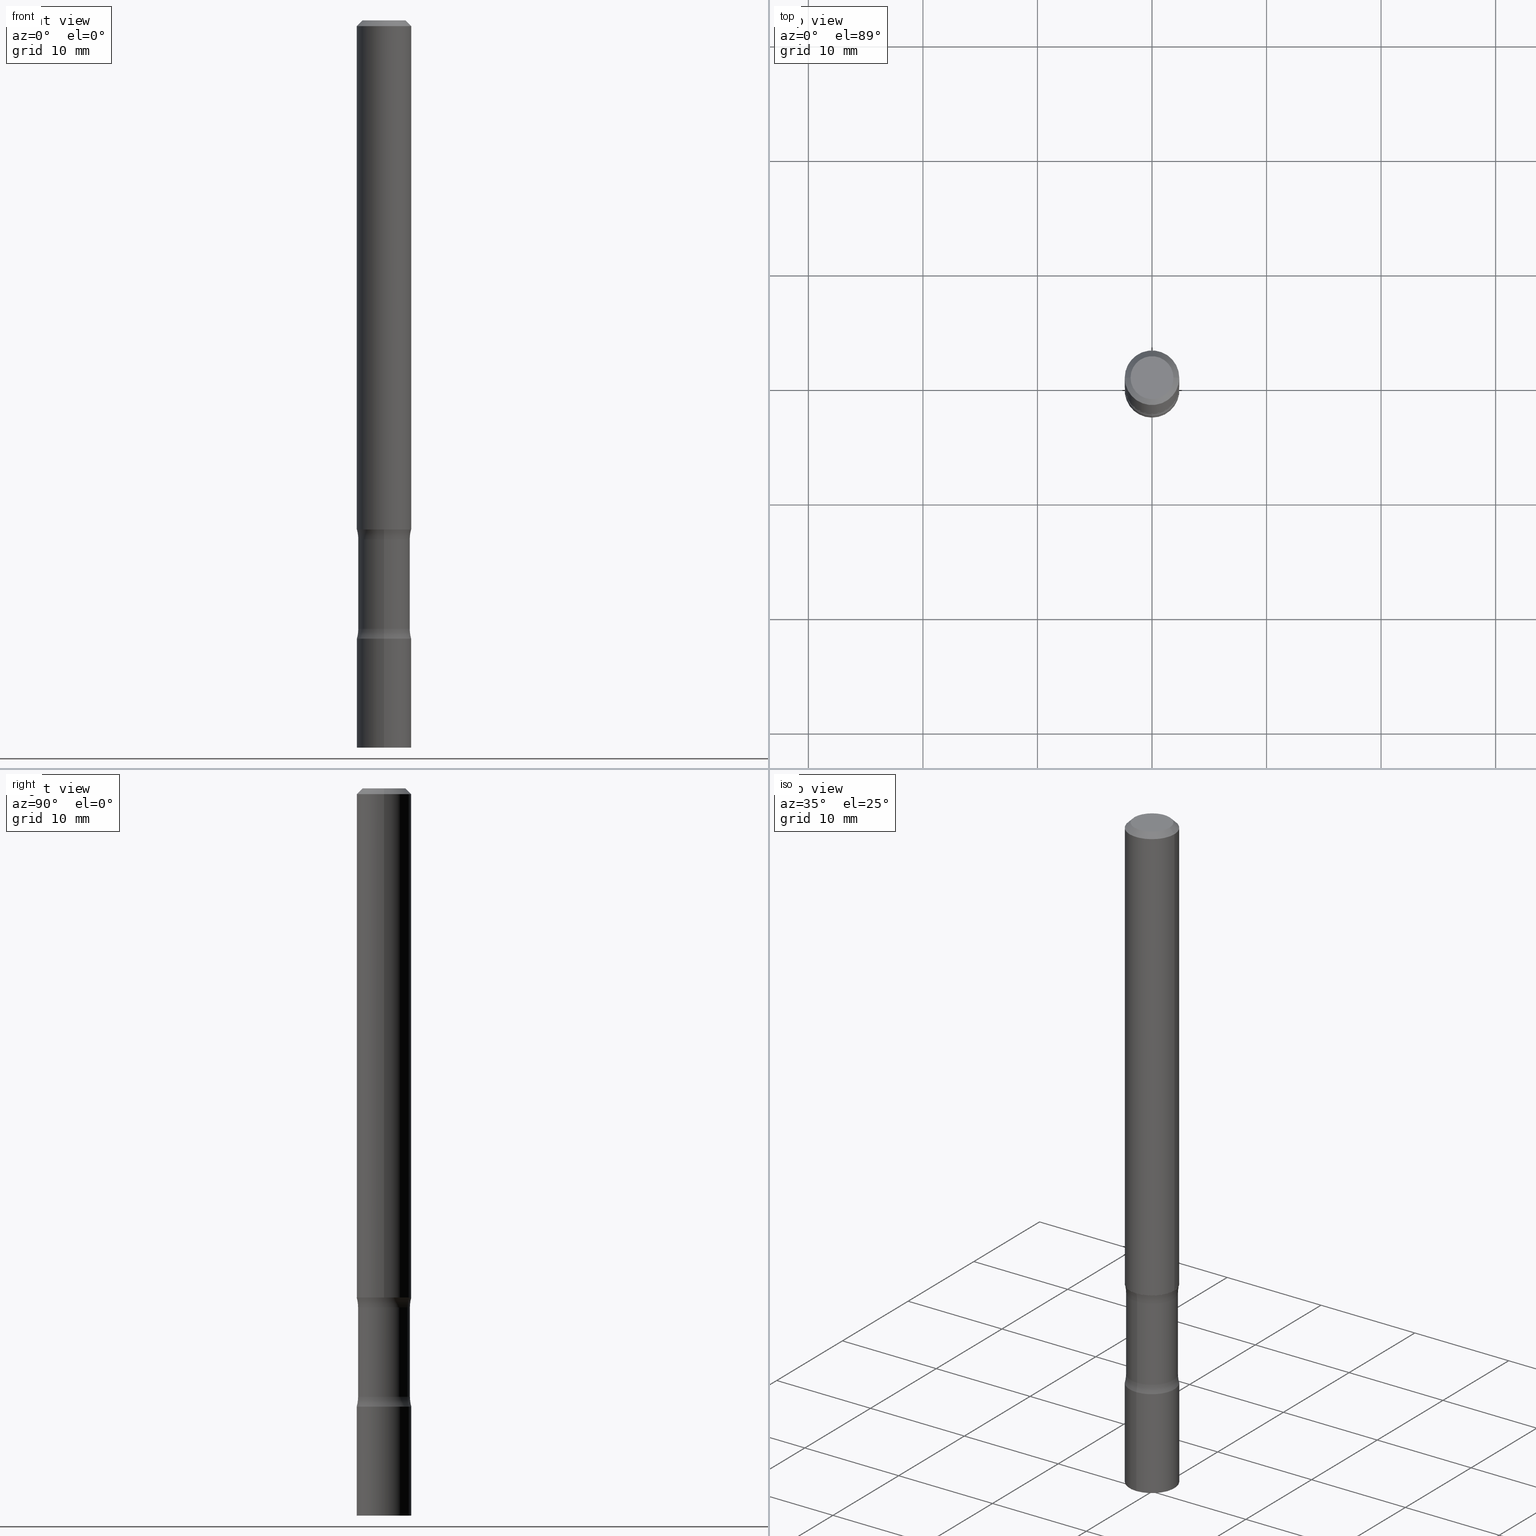
[diagram: canonical four-view strip — front | top / right | iso, engineering-drawing reading convention]
A machine part, canonical four-view strip (front | top / right | iso — engineering-drawing reading convention). The complete STEP part file that produces these views, byte-faithful:
ISO-10303-21;
HEADER;
FILE_DESCRIPTION (( 'STEP AP203' ),
    '1' );
FILE_NAME ('37767.STEP',
    '2024-03-11T13:24:12',
    ( '' ),
    ( '' ),
    'SwSTEP 2.0',
    'SolidWorks 2023',
    '' );
FILE_SCHEMA (( 'CONFIG_CONTROL_DESIGN' ));
ENDSEC;

DATA;
#1 = DATE_TIME_ROLE ( 'creation_date' ) ;
#2 = MANIFOLD_SOLID_BREP ( 'Body-Move/Copy2[2]', #119 ) ;
#3 = APPROVAL_ROLE ( '' ) ;
#4 = CIRCLE ( 'NONE', #356, 0.09375000000000001388 ) ;
#5 = AXIS2_PLACEMENT_3D ( 'NONE', #372, #20, #189 ) ;
#6 = FACE_OUTER_BOUND ( 'NONE', #46, .T. ) ;
#7 = MANIFOLD_SOLID_BREP ( 'Body-Move/Copy2[1]', #424 ) ;
#8 = VERTEX_POINT ( 'NONE', #139 ) ;
#9 = CALENDAR_DATE ( 2024, 11, 3 ) ;
#10 = EDGE_LOOP ( 'NONE', ( #250, #318 ) ) ;
#11 = VERTEX_POINT ( 'NONE', #443 ) ;
#12 = DIRECTION ( 'NONE',  ( -1.000000000000000000, 6.982962677686265922E-15, -4.876176775795935793E-29 ) ) ;
#13 = ADVANCED_FACE ( 'NONE', ( #403 ), #407, .T. ) ;
#14 = DIRECTION ( 'NONE',  ( 1.000000000000000000, -6.982962677686261189E-15, 0.000000000000000000 ) ) ;
#15 = ORIENTED_EDGE ( 'NONE', *, *, #326, .T. ) ;
#16 = CARTESIAN_POINT ( 'NONE',  ( 4.279570410823988484E-29, -6.110092342975504671E-15, -1.750000000000000000 ) ) ;
#17 = ORIENTED_EDGE ( 'NONE', *, *, #332, .F. ) ;
#18 = DIRECTION ( 'NONE',  ( 1.000000000000000000, -6.982962677686266711E-15, 4.876176775795935793E-29 ) ) ;
#19 = ADVANCED_FACE ( 'NONE', ( #50 ), #215, .T. ) ;
#20 = DIRECTION ( 'NONE',  ( -2.445335353247201709E-29, 3.491672451045937805E-15, 1.000000000000000000 ) ) ;
#21 = AXIS2_PLACEMENT_3D ( 'NONE', #260, #97, #251 ) ;
#22 = AXIS2_PLACEMENT_3D ( 'NONE', #455, #104, #263 ) ;
#23 = ORIENTED_EDGE ( 'NONE', *, *, #227, .T. ) ;
#24 = CARTESIAN_POINT ( 'NONE',  ( 6.546527510331397661E-16, 0.09374999999999261702, -2.125000000000000444 ) ) ;
#25 = CARTESIAN_POINT ( 'NONE',  ( 5.196337625650303527E-29, -7.419803958472619019E-15, -2.125000000000000000 ) ) ;
#26 = ORIENTED_EDGE ( 'NONE', *, *, #439, .F. ) ;
#27 = DIRECTION ( 'NONE',  ( -6.982962677686265922E-15, -1.000000000000000000, 2.913971193241880372E-15 ) ) ;
#28 = CARTESIAN_POINT ( 'NONE',  ( 4.314805790192302667E-29, -6.296785408305889994E-15, -1.783910210022204401 ) ) ;
#29 = CC_DESIGN_DATE_AND_TIME_ASSIGNMENT ( #353, #1, ( #488 ) ) ;
#30 = CARTESIAN_POINT ( 'NONE',  ( 6.661338147750938256E-16, 0.09375000000000001388, -3.273442922855567185E-16 ) ) ;
#31 = CIRCLE ( 'NONE', #289, 0.09375000000000001388 ) ;
#32 = AXIS2_PLACEMENT_3D ( 'NONE', #391, #200, #508 ) ;
#33 = LINE ( 'NONE', #348, #153 ) ;
#34 = DIRECTION ( 'NONE',  ( 2.577039791092079409E-29, -3.303064199901000429E-15, -1.000000000000000000 ) ) ;
#35 = CC_DESIGN_PERSON_AND_ORGANIZATION_ASSIGNMENT ( #475, #436, ( #486 ) ) ;
#36 = FACE_OUTER_BOUND ( 'NONE', #10, .T. ) ;
#37 = AXIS2_PLACEMENT_3D ( 'NONE', #257, #57, #395 ) ;
#38 = PERSON_AND_ORGANIZATION ( #60, #254 ) ;
#39 = SECURITY_CLASSIFICATION ( '', '', #207 ) ;
#40 = DIRECTION ( 'NONE',  ( 1.000000000000000000, -6.982962677686266711E-15, 0.000000000000000000 ) ) ;
#41 = CALENDAR_DATE ( 2024, 11, 3 ) ;
#42 = ORIENTED_EDGE ( 'NONE', *, *, #340, .T. ) ;
#43 = PERSON_AND_ORGANIZATION ( #60, #254 ) ;
#44 = EDGE_CURVE ( 'NONE', #61, #264, #489, .T. ) ;
#45 = DIRECTION ( 'NONE',  ( -6.982962677686265922E-15, -1.000000000000000000, 3.303064199901000035E-15 ) ) ;
#46 = EDGE_LOOP ( 'NONE', ( #131, #96 ) ) ;
#47 = APPROVAL_DATE_TIME ( #319, #431 ) ;
#48 = CIRCLE ( 'NONE', #425, 0.09375000000000001388 ) ;
#49 = AXIS2_PLACEMENT_3D ( 'NONE', #156, #423, #385 ) ;
#50 = FACE_OUTER_BOUND ( 'NONE', #216, .T. ) ;
#51 = ORIENTED_EDGE ( 'NONE', *, *, #332, .T. ) ;
#52 = ORIENTED_EDGE ( 'NONE', *, *, #133, .F. ) ;
#53 = DIRECTION ( 'NONE',  ( -2.445468806185136597E-29, 3.491481338843145583E-15, 1.000000000000000000 ) ) ;
#54 = ORIENTED_EDGE ( 'NONE', *, *, #208, .T. ) ;
#55 = CIRCLE ( 'NONE', #381, 0.07374999999999982958 ) ;
#56 = VECTOR ( 'NONE', #427, 39.37007874015748143 ) ;
#57 = DIRECTION ( 'NONE',  ( 2.577039791092079409E-29, -3.303064199901000429E-15, -1.000000000000000000 ) ) ;
#58 = VERTEX_POINT ( 'NONE', #329 ) ;
#59 = DIRECTION ( 'NONE',  ( 2.577039791092079409E-29, -3.303064199901000429E-15, -1.000000000000000000 ) ) ;
#60 = PERSON ( 'UNSPECIFIED', 'UNSPECIFIED', 'UNSPECIFIED', ('UNSPECIFIED'), ('UNSPECIFIED'), ('UNSPECIFIED') ) ;
#61 = VERTEX_POINT ( 'NONE', #405 ) ;
#62 = CARTESIAN_POINT ( 'NONE',  ( 5.196337625650303527E-29, -7.419803958472619019E-15, -2.125000000000000000 ) ) ;
#63 = VERTEX_POINT ( 'NONE', #481 ) ;
#64 = DIRECTION ( 'NONE',  ( -2.438088387897960049E-29, 3.491481338843145188E-15, 1.000000000000000000 ) ) ;
#65 = AXIS2_PLACEMENT_3D ( 'NONE', #115, #64, #305 ) ;
#66 = AXIS2_PLACEMENT_3D ( 'NONE', #28, #194, #109 ) ;
#67 = EDGE_LOOP ( 'NONE', ( #333, #51 ) ) ;
#68 = CC_DESIGN_APPROVAL ( #198, ( #39 ) ) ;
#69 = CARTESIAN_POINT ( 'NONE',  ( 5.196337625650303527E-29, -7.419803958472619019E-15, -2.125000000000000000 ) ) ;
#70 = DIRECTION ( 'NONE',  ( -2.445335353247201709E-29, 3.491672451045937805E-15, 1.000000000000000000 ) ) ;
#71 = EDGE_CURVE ( 'NONE', #11, #362, #159, .T. ) ;
#72 = DIRECTION ( 'NONE',  ( -2.445468806185136597E-29, 3.491481338843145583E-15, 1.000000000000000000 ) ) ;
#73 = CARTESIAN_POINT ( 'NONE',  ( 4.317335664542283686E-29, -6.293162484245211017E-15, -1.783910210022204401 ) ) ;
#74 = DIRECTION ( 'NONE',  ( 2.577039791092079409E-29, -3.303064199901000429E-15, -1.000000000000000000 ) ) ;
#75 = AXIS2_PLACEMENT_3D ( 'NONE', #192, #336, #334 ) ;
#76 = AXIS2_PLACEMENT_3D ( 'NONE', #502, #242, #40 ) ;
#77 = FACE_OUTER_BOUND ( 'NONE', #366, .T. ) ;
#78 = EDGE_CURVE ( 'NONE', #63, #437, #31, .T. ) ;
#79 = DIRECTION ( 'NONE',  ( -2.445335353247201709E-29, 3.491672451045937805E-15, 1.000000000000000000 ) ) ;
#80 = DESIGN_CONTEXT ( 'detailed design', #141, 'design' ) ;
#81 = PERSON_AND_ORGANIZATION_ROLE ( 'creator' ) ;
#82 = AXIS2_PLACEMENT_3D ( 'NONE', #62, #110, #27 ) ;
#83 = CARTESIAN_POINT ( 'NONE',  ( -6.546527510330875041E-16, -0.09375000000000001388, 3.273442922855567185E-16 ) ) ;
#84 = ADVANCED_FACE ( 'NONE', ( #6 ), #185, .F. ) ;
#85 = ORIENTED_EDGE ( 'NONE', *, *, #308, .F. ) ;
#86 = COORDINATED_UNIVERSAL_TIME_OFFSET ( 5, 0, .BEHIND. ) ;
#87 = DIRECTION ( 'NONE',  ( 6.860497997771531562E-15, 1.000000000000000000, 0.000000000000000000 ) ) ;
#88 = PERSON_AND_ORGANIZATION ( #60, #254 ) ;
#89 = ORIENTED_EDGE ( 'NONE', *, *, #44, .T. ) ;
#90 = ORIENTED_EDGE ( 'NONE', *, *, #190, .F. ) ;
#91 = APPROVAL_STATUS ( 'not_yet_approved' ) ;
#92 = VECTOR ( 'NONE', #483, 39.37007874015748143 ) ;
#93 = AXIS2_PLACEMENT_3D ( 'NONE', #107, #248, #236 ) ;
#94 = EDGE_CURVE ( 'NONE', #183, #256, #223, .T. ) ;
#95 = EDGE_LOOP ( 'NONE', ( #17, #293, #15, #301 ) ) ;
#96 = ORIENTED_EDGE ( 'NONE', *, *, #217, .T. ) ;
#97 = DIRECTION ( 'NONE',  ( -2.445335353247201709E-29, 3.491672451045937805E-15, 1.000000000000000000 ) ) ;
#98 = ORIENTED_EDGE ( 'NONE', *, *, #117, .F. ) ;
#99 = DIRECTION ( 'NONE',  ( 1.000000000000000000, -6.860497997771530774E-15, 4.843106324085242827E-29 ) ) ;
#100 = ORIENTED_EDGE ( 'NONE', *, *, #308, .T. ) ;
#101 = CC_DESIGN_APPROVAL ( #220, ( #488 ) ) ;
#102 = CARTESIAN_POINT ( 'NONE',  ( 0.000000000000000000, 0.000000000000000000, 0.000000000000000000 ) ) ;
#103 = ADVANCED_FACE ( 'NONE', ( #213 ), #134, .F. ) ;
#104 = DIRECTION ( 'NONE',  ( 2.445335353247201149E-29, -3.491672451045938200E-15, -1.000000000000000000 ) ) ;
#105 = ORIENTED_EDGE ( 'NONE', *, *, #44, .F. ) ;
#106 = CARTESIAN_POINT ( 'NONE',  ( 5.108949665098794430E-29, -7.307796357737152502E-15, -2.091089789977795821 ) ) ;
#107 = CARTESIAN_POINT ( 'NONE',  ( 1.494790448192267744E-15, 0.2140624999999927169, -2.091089789977796709 ) ) ;
#108 = VERTEX_POINT ( 'NONE', #249 ) ;
#109 = DIRECTION ( 'NONE',  ( 6.982962677686265922E-15, 1.000000000000000000, -3.303064199901000429E-15 ) ) ;
#110 = DIRECTION ( 'NONE',  ( -2.445335353247201709E-29, 3.491672451045937805E-15, 1.000000000000000000 ) ) ;
#111 = ADVANCED_FACE ( 'NONE', ( #295 ), #179, .T. ) ;
#112 = AXIS2_PLACEMENT_3D ( 'NONE', #478, #283, #12 ) ;
#113 = VECTOR ( 'NONE', #398, 39.37007874015748143 ) ;
#114 = CARTESIAN_POINT ( 'NONE',  ( 0.000000000000000000, 0.000000000000000000, 0.000000000000000000 ) ) ;
#115 = CARTESIAN_POINT ( 'NONE',  ( 4.279570410823988484E-29, -6.110092342975504671E-15, -1.750000000000000000 ) ) ;
#116 =( NAMED_UNIT ( * ) SI_UNIT ( $, .STERADIAN. ) SOLID_ANGLE_UNIT ( ) );
#117 = EDGE_CURVE ( 'NONE', #8, #108, #390, .T. ) ;
#118 = DIRECTION ( 'NONE',  ( 2.577039791092079409E-29, -3.303064199901000035E-15, -1.000000000000000000 ) ) ;
#119 = CLOSED_SHELL ( 'NONE', ( #174, #317, #184, #84, #258, #505 ) ) ;
#120 = TOROIDAL_SURFACE ( 'NONE', #383, 0.2140625000000000167, 0.1249999999999999584 ) ;
#121 = CARTESIAN_POINT ( 'NONE',  ( 4.229947703990773468E-29, -6.181154883509742133E-15, -1.750000000000000000 ) ) ;
#122 = DIRECTION ( 'NONE',  ( 1.000000000000000000, 0.000000000000000000, 0.000000000000000000 ) ) ;
#123 = DIRECTION ( 'NONE',  ( 6.982962677686265922E-15, 1.000000000000000000, -3.491672451045938200E-15 ) ) ;
#124 = EDGE_CURVE ( 'NONE', #437, #256, #400, .T. ) ;
#125 = COORDINATED_UNIVERSAL_TIME_OFFSET ( 5, 0, .BEHIND. ) ;
#126 = CC_DESIGN_PERSON_AND_ORGANIZATION_ASSIGNMENT ( #38, #81, ( #488 ) ) ;
#127 = VERTEX_POINT ( 'NONE', #341 ) ;
#128 = AXIS2_PLACEMENT_3D ( 'NONE', #245, #468, #123 ) ;
#129 = DIRECTION ( 'NONE',  ( -2.445468806185136597E-29, 3.491481338843145583E-15, 1.000000000000000000 ) ) ;
#130 = VERTEX_POINT ( 'NONE', #498 ) ;
#131 = ORIENTED_EDGE ( 'NONE', *, *, #421, .T. ) ;
#132 = ORIENTED_EDGE ( 'NONE', *, *, #421, .F. ) ;
#133 = EDGE_CURVE ( 'NONE', #325, #130, #458, .T. ) ;
#134 = PLANE ( 'NONE',  #374 ) ;
#135 = ORIENTED_EDGE ( 'NONE', *, *, #361, .T. ) ;
#136 = AXIS2_PLACEMENT_3D ( 'NONE', #449, #99, #209 ) ;
#137 = LOCAL_TIME ( 9, 24, 12.00000000000000000, #355 ) ;
#138 = APPROVAL_PERSON_ORGANIZATION ( #43, #198, #3 ) ;
#139 = CARTESIAN_POINT ( 'NONE',  ( -6.270923951087616950E-16, -0.08906250000000633105, -1.783910210022204179 ) ) ;
#140 = VERTEX_POINT ( 'NONE', #415 ) ;
#141 = APPLICATION_CONTEXT ( 'configuration controlled 3d designs of mechanical parts and assemblies' ) ;
#142 = DIRECTION ( 'NONE',  ( -0.7071067811865467956, 2.468850131082249172E-15, -0.7071067811865482389 ) ) ;
#143 = ORIENTED_EDGE ( 'NONE', *, *, #493, .T. ) ;
#144 = DIRECTION ( 'NONE',  ( -2.445335353247201709E-29, 3.491672451045938200E-15, 1.000000000000000000 ) ) ;
#145 = ORIENTED_EDGE ( 'NONE', *, *, #124, .T. ) ;
#146 = CIRCLE ( 'NONE', #93, 0.1249999999999999584 ) ;
#147 = DIRECTION ( 'NONE',  ( -2.445335353247201709E-29, 3.491672451045937805E-15, 1.000000000000000000 ) ) ;
#148 = DIRECTION ( 'NONE',  ( -6.982962677686265922E-15, -1.000000000000000000, 2.913971193241880372E-15 ) ) ;
#149 = CC_DESIGN_PERSON_AND_ORGANIZATION_ASSIGNMENT ( #432, #244, ( #39 ) ) ;
#150 = CARTESIAN_POINT ( 'NONE',  ( -0.09374999999999979183, 5.848231242562231212E-16, -0.02000000000000000042 ) ) ;
#151 = AXIS2_PLACEMENT_3D ( 'NONE', #420, #452, #230 ) ;
#152 = DIRECTION ( 'NONE',  ( 2.577039791092079409E-29, -3.303064199901000429E-15, -1.000000000000000000 ) ) ;
#153 = VECTOR ( 'NONE', #118, 39.37007874015748143 ) ;
#154 = LENGTH_MEASURE_WITH_UNIT ( LENGTH_MEASURE( 0.02539999999999999897 ), #158 );
#155 = DIRECTION ( 'NONE',  ( 2.577039791092079409E-29, -3.303064199901000429E-15, -1.000000000000000000 ) ) ;
#156 = CARTESIAN_POINT ( 'NONE',  ( 4.279570410823988484E-29, -6.110092342975504671E-15, -1.750000000000000000 ) ) ;
#157 = DATE_AND_TIME ( #480, #384 ) ;
#158 =( LENGTH_UNIT ( ) NAMED_UNIT ( * ) SI_UNIT ( $, .METRE. ) );
#159 = CIRCLE ( 'NONE', #408, 0.1249999999999999584 ) ;
#160 = TOROIDAL_SURFACE ( 'NONE', #188, 0.2140625000000000167, 0.1249999999999999584 ) ;
#161 = MECHANICAL_CONTEXT ( 'NONE', #373, 'mechanical' ) ;
#162 = FACE_OUTER_BOUND ( 'NONE', #451, .T. ) ;
#163 = PRODUCT ( '37767', '37767', '', ( #161 ) ) ;
#164 = APPROVAL_ROLE ( '' ) ;
#165 = CC_DESIGN_PERSON_AND_ORGANIZATION_ASSIGNMENT ( #388, #313, ( #163 ) ) ;
#166 = FACE_OUTER_BOUND ( 'NONE', #167, .T. ) ;
#167 = EDGE_LOOP ( 'NONE', ( #173, #89, #143, #445 ) ) ;
#168 = PERSON_AND_ORGANIZATION ( #60, #254 ) ;
#169 = CIRCLE ( 'NONE', #453, 0.08906250000000003053 ) ;
#170 = CC_DESIGN_APPROVAL ( #431, ( #486 ) ) ;
#171 = COORDINATED_UNIVERSAL_TIME_OFFSET ( 5, 0, .BEHIND. ) ;
#172 = DIRECTION ( 'NONE',  ( 1.000000000000000000, -6.982962677686261189E-15, 0.000000000000000000 ) ) ;
#173 = ORIENTED_EDGE ( 'NONE', *, *, #217, .F. ) ;
#174 = ADVANCED_FACE ( 'NONE', ( #297 ), #371, .T. ) ;
#175 = ORIENTED_EDGE ( 'NONE', *, *, #262, .F. ) ;
#176 = APPROVAL_STATUS ( 'not_yet_approved' ) ;
#177 = DIRECTION ( 'NONE',  ( 2.577039791092079409E-29, -3.303064199901000429E-15, -1.000000000000000000 ) ) ;
#178 = EDGE_LOOP ( 'NONE', ( #266, #438, #404, #364 ) ) ;
#179 = CYLINDRICAL_SURFACE ( 'NONE', #320, 0.08906250000000004441 ) ;
#180 = VECTOR ( 'NONE', #144, 39.37007874015748143 ) ;
#181 = CIRCLE ( 'NONE', #344, 0.08906250000000008604 ) ;
#182 = CARTESIAN_POINT ( 'NONE',  ( -1.468575352647917278E-15, -0.2140625000000073164, -2.091089789977794933 ) ) ;
#183 = VERTEX_POINT ( 'NONE', #269 ) ;
#184 = ADVANCED_FACE ( 'NONE', ( #496 ), #275, .T. ) ;
#185 = PLANE ( 'NONE',  #112 ) ;
#186 = ORIENTED_EDGE ( 'NONE', *, *, #416, .F. ) ;
#187 = CARTESIAN_POINT ( 'NONE',  ( 6.546527510331302998E-16, 0.09374999999999390765, -1.750000000000000222 ) ) ;
#188 = AXIS2_PLACEMENT_3D ( 'NONE', #191, #504, #503 ) ;
#189 = DIRECTION ( 'NONE',  ( -6.982962677686265922E-15, -1.000000000000000000, 3.491672451045937805E-15 ) ) ;
#190 = EDGE_CURVE ( 'NONE', #140, #8, #499, .T. ) ;
#191 = CARTESIAN_POINT ( 'NONE',  ( 5.113694852322929096E-29, -7.301000979552907494E-15, -2.091089789977795821 ) ) ;
#192 = CARTESIAN_POINT ( 'NONE',  ( 1.494790448192259855E-15, 0.2140624999999937716, -1.783910210022205289 ) ) ;
#193 = ORIENTED_EDGE ( 'NONE', *, *, #439, .T. ) ;
#194 = DIRECTION ( 'NONE',  ( 2.577039791092079409E-29, -3.303064199901000429E-15, -1.000000000000000000 ) ) ;
#195 = DIRECTION ( 'NONE',  ( -2.445468806185136877E-29, 3.491481338843145188E-15, 1.000000000000000000 ) ) ;
#196 = CARTESIAN_POINT ( 'NONE',  ( 5.108949665098794430E-29, -7.307796357737152502E-15, -2.091089789977795821 ) ) ;
#197 = AXIS2_PLACEMENT_3D ( 'NONE', #387, #79, #240 ) ;
#198 = APPROVAL ( #176, 'UNSPECIFIED' ) ;
#199 = CARTESIAN_POINT ( 'NONE',  ( 5.113694852322929096E-29, -7.301000979552907494E-15, -2.091089789977795821 ) ) ;
#200 = DIRECTION ( 'NONE',  ( 2.445468806185136597E-29, -3.491481338843145583E-15, -1.000000000000000000 ) ) ;
#201 = VECTOR ( 'NONE', #142, 39.37007874015748143 ) ;
#202 = APPROVAL_PERSON_ORGANIZATION ( #88, #431, #164 ) ;
#203 = EDGE_CURVE ( 'NONE', #140, #285, #261, .T. ) ;
#204 = DIRECTION ( 'NONE',  ( 6.982962677686265133E-15, 1.000000000000000000, -3.067338098149345144E-15 ) ) ;
#205 = CARTESIAN_POINT ( 'NONE',  ( 4.279570410823988484E-29, -6.110092342975504671E-15, -1.750000000000000000 ) ) ;
#206 = ORIENTED_EDGE ( 'NONE', *, *, #447, .T. ) ;
#207 = SECURITY_CLASSIFICATION_LEVEL ( 'unclassified' ) ;
#208 = EDGE_CURVE ( 'NONE', #285, #362, #342, .T. ) ;
#209 = DIRECTION ( 'NONE',  ( 6.860497997771531562E-15, 1.000000000000000000, 0.000000000000000000 ) ) ;
#210 = ORIENTED_EDGE ( 'NONE', *, *, #350, .F. ) ;
#211 = AXIS2_PLACEMENT_3D ( 'NONE', #419, #339, #347 ) ;
#212 = PERSON_AND_ORGANIZATION_ROLE ( 'design_supplier' ) ;
#213 = FACE_OUTER_BOUND ( 'NONE', #67, .T. ) ;
#214 = EDGE_LOOP ( 'NONE', ( #231, #186 ) ) ;
#215 = CYLINDRICAL_SURFACE ( 'NONE', #37, 0.08906250000000004441 ) ;
#216 = EDGE_LOOP ( 'NONE', ( #210, #23, #225, #298 ) ) ;
#217 = EDGE_CURVE ( 'NONE', #61, #183, #55, .T. ) ;
#218 = CARTESIAN_POINT ( 'NONE',  ( -0.09374999999999979183, 5.848231242562231212E-16, -0.02000000000000000042 ) ) ;
#219 = ORIENTED_EDGE ( 'NONE', *, *, #274, .F. ) ;
#220 = APPROVAL ( #91, 'UNSPECIFIED' ) ;
#221 = AXIS2_PLACEMENT_3D ( 'NONE', #121, #34, #343 ) ;
#222 = CIRCLE ( 'NONE', #401, 0.09375000000000001388 ) ;
#223 = LINE ( 'NONE', #218, #201 ) ;
#224 = PLANE ( 'NONE',  #65 ) ;
#225 = ORIENTED_EDGE ( 'NONE', *, *, #203, .T. ) ;
#226 = FACE_OUTER_BOUND ( 'NONE', #290, .T. ) ;
#227 = EDGE_CURVE ( 'NONE', #8, #140, #169, .T. ) ;
#228 = AXIS2_PLACEMENT_3D ( 'NONE', #73, #152, #331 ) ;
#229 = CIRCLE ( 'NONE', #82, 0.09375000000000001388 ) ;
#230 = DIRECTION ( 'NONE',  ( -1.000000000000000000, 6.982962677686266711E-15, 0.000000000000000000 ) ) ;
#231 = ORIENTED_EDGE ( 'NONE', *, *, #276, .F. ) ;
#232 = DIRECTION ( 'NONE',  ( 6.982962677686265922E-15, 1.000000000000000000, -2.913971193241880372E-15 ) ) ;
#233 = CARTESIAN_POINT ( 'NONE',  ( 6.219201134814949559E-16, 0.08906249999999139855, -2.500000000000000444 ) ) ;
#234 = DIRECTION ( 'NONE',  ( 6.982962677686266711E-15, 1.000000000000000000, -2.913971193241878794E-15 ) ) ;
#235 = DIRECTION ( 'NONE',  ( -2.445468806185136597E-29, 3.491481338843145583E-15, 1.000000000000000000 ) ) ;
#236 = DIRECTION ( 'NONE',  ( -6.982962677686265922E-15, -1.000000000000000000, 0.000000000000000000 ) ) ;
#237 = CIRCLE ( 'NONE', #75, 0.1250000000000000278 ) ;
#238 = DIRECTION ( 'NONE',  ( 6.982962677686265922E-15, 1.000000000000000000, -3.303064199901000429E-15 ) ) ;
#239 = AXIS2_PLACEMENT_3D ( 'NONE', #303, #460, #382 ) ;
#240 = DIRECTION ( 'NONE',  ( -6.982962677686265922E-15, -1.000000000000000000, 5.827942386483760744E-15 ) ) ;
#241 = CARTESIAN_POINT ( 'NONE',  ( 0.000000000000000000, 0.000000000000000000, 0.000000000000000000 ) ) ;
#242 = DIRECTION ( 'NONE',  ( -2.445468806185136597E-29, 3.491481338843145583E-15, 1.000000000000000000 ) ) ;
#243 = AXIS2_PLACEMENT_3D ( 'NONE', #337, #270, #267 ) ;
#244 = PERSON_AND_ORGANIZATION_ROLE ( 'classification_officer' ) ;
#245 = CARTESIAN_POINT ( 'NONE',  ( 5.196621213143415268E-29, -7.419397845041685201E-15, -2.125000000000000000 ) ) ;
#246 = EDGE_LOOP ( 'NONE', ( #296, #396, #360, #255 ) ) ;
#247 = DATE_AND_TIME ( #9, #328 ) ;
#248 = DIRECTION ( 'NONE',  ( -1.000000000000000000, 6.982962677686265922E-15, -4.883557194083112340E-29 ) ) ;
#249 = CARTESIAN_POINT ( 'NONE',  ( -6.431716872910392743E-16, -0.09375000000000627276, -1.749999999999999556 ) ) ;
#250 = ORIENTED_EDGE ( 'NONE', *, *, #292, .T. ) ;
#251 = DIRECTION ( 'NONE',  ( -6.982962677686265922E-15, -1.000000000000000000, 3.491672451045937805E-15 ) ) ;
#252 = CLOSED_SHELL ( 'NONE', ( #111, #467, #393, #479, #346, #103, #321, #19 ) ) ;
#253 = ORIENTED_EDGE ( 'NONE', *, *, #370, .F. ) ;
#254 = ORGANIZATION ( 'UNSPECIFIED', 'UNSPECIFIED', '' ) ;
#255 = ORIENTED_EDGE ( 'NONE', *, *, #340, .F. ) ;
#256 = VERTEX_POINT ( 'NONE', #150 ) ;
#257 = CARTESIAN_POINT ( 'NONE',  ( 6.162727547309833585E-29, -8.658453033435494328E-15, -2.500000000000000000 ) ) ;
#258 = ADVANCED_FACE ( 'NONE', ( #378 ), #224, .F. ) ;
#259 = VERTEX_POINT ( 'NONE', #187 ) ;
#260 = CARTESIAN_POINT ( 'NONE',  ( 0.000000000000000000, 0.000000000000000000, 0.000000000000000000 ) ) ;
#261 = LINE ( 'NONE', #233, #280 ) ;
#262 = EDGE_CURVE ( 'NONE', #140, #259, #237, .T. ) ;
#263 = DIRECTION ( 'NONE',  ( 6.982962677686265922E-15, 1.000000000000000000, -3.491672451045938200E-15 ) ) ;
#264 = VERTEX_POINT ( 'NONE', #491 ) ;
#265 = PLANE ( 'NONE',  #22 ) ;
#266 = ORIENTED_EDGE ( 'NONE', *, *, #190, .T. ) ;
#267 = DIRECTION ( 'NONE',  ( 6.982962677686265922E-15, 1.000000000000000000, -3.303064199901000429E-15 ) ) ;
#268 = LOCAL_TIME ( 9, 24, 12.00000000000000000, #315 ) ;
#269 = CARTESIAN_POINT ( 'NONE',  ( -0.07374999999999982958, 5.499083108677920638E-16, -3.723527850031185562E-30 ) ) ;
#270 = DIRECTION ( 'NONE',  ( 2.577039791092079409E-29, -3.303064199901000429E-15, -1.000000000000000000 ) ) ;
#271 = DIRECTION ( 'NONE',  ( 1.000000000000000000, -6.982962677686265133E-15, 4.876176775795935793E-29 ) ) ;
#272 = PLANE ( 'NONE',  #49 ) ;
#273 = ADVANCED_BREP_SHAPE_REPRESENTATION ( '37767', ( #7, #2, #349, #312 ), #477 ) ;
#274 = EDGE_CURVE ( 'NONE', #130, #127, #4, .T. ) ;
#275 = CONICAL_SURFACE ( 'NONE', #151, 0.09374999999999979183, 0.7853981633974472798 ) ;
#276 = EDGE_CURVE ( 'NONE', #58, #325, #48, .T. ) ;
#277 = CALENDAR_DATE ( 2024, 11, 3 ) ;
#278 = DIRECTION ( 'NONE',  ( 2.577039791092079409E-29, -3.303064199901000429E-15, -1.000000000000000000 ) ) ;
#279 = PERSON_AND_ORGANIZATION ( #60, #254 ) ;
#280 = VECTOR ( 'NONE', #376, 39.37007874015748143 ) ;
#281 = CIRCLE ( 'NONE', #211, 0.09374999999999979183 ) ;
#282 = EDGE_LOOP ( 'NONE', ( #482, #446, #193, #175 ) ) ;
#283 = DIRECTION ( 'NONE',  ( 2.438088387897960049E-29, -3.491481338843145188E-15, -1.000000000000000000 ) ) ;
#284 = ADVANCED_FACE ( 'NONE', ( #418 ), #265, .T. ) ;
#285 = VERTEX_POINT ( 'NONE', #414 ) ;
#286 = EDGE_LOOP ( 'NONE', ( #367, #253 ) ) ;
#287 = CARTESIAN_POINT ( 'NONE',  ( 0.09374999999999988898, -6.546527510330866166E-16, 4.571415727308684201E-30 ) ) ;
#288 = DIRECTION ( 'NONE',  ( 6.982962677686265133E-15, 1.000000000000000000, -6.134676196298693444E-15 ) ) ;
#289 = AXIS2_PLACEMENT_3D ( 'NONE', #16, #53, #14 ) ;
#290 = EDGE_LOOP ( 'NONE', ( #484, #490, #448, #85 ) ) ;
#291 = CONICAL_SURFACE ( 'NONE', #32, 0.09374999999999979183, 0.7853981633974472798 ) ;
#292 = EDGE_CURVE ( 'NONE', #127, #130, #229, .T. ) ;
#293 = ORIENTED_EDGE ( 'NONE', *, *, #71, .T. ) ;
#294 = ORIENTED_EDGE ( 'NONE', *, *, #78, .T. ) ;
#295 = FACE_OUTER_BOUND ( 'NONE', #178, .T. ) ;
#296 = ORIENTED_EDGE ( 'NONE', *, *, #124, .F. ) ;
#297 = FACE_OUTER_BOUND ( 'NONE', #412, .T. ) ;
#298 = ORIENTED_EDGE ( 'NONE', *, *, #326, .F. ) ;
#299 = CC_DESIGN_PERSON_AND_ORGANIZATION_ASSIGNMENT ( #279, #212, ( #486 ) ) ;
#300 = DIRECTION ( 'NONE',  ( -6.982962677686265922E-15, -1.000000000000000000, 5.827942386483760744E-15 ) ) ;
#301 = ORIENTED_EDGE ( 'NONE', *, *, #361, .F. ) ;
#302 = DIRECTION ( 'NONE',  ( -2.445468806185136597E-29, 3.491481338843145583E-15, 1.000000000000000000 ) ) ;
#303 = CARTESIAN_POINT ( 'NONE',  ( 0.000000000000000000, 0.000000000000000000, 0.000000000000000000 ) ) ;
#304 = ADVANCED_FACE ( 'NONE', ( #226 ), #494, .T. ) ;
#305 = DIRECTION ( 'NONE',  ( 1.000000000000000000, -6.982962677686265922E-15, 4.876176775795935793E-29 ) ) ;
#306 = AXIS2_PLACEMENT_3D ( 'NONE', #114, #72, #379 ) ;
#307 = DIRECTION ( 'NONE',  ( 6.982962677686265133E-15, 1.000000000000000000, -3.067338098149347116E-15 ) ) ;
#308 = EDGE_CURVE ( 'NONE', #58, #127, #316, .T. ) ;
#309 =( CONVERSION_BASED_UNIT ( 'INCH', #154 ) LENGTH_UNIT ( ) NAMED_UNIT ( #352 ) );
#310 = PLANE ( 'NONE',  #128 ) ;
#311 = ADVANCED_FACE ( 'NONE', ( #36 ), #310, .F. ) ;
#312 = AXIS2_PLACEMENT_3D ( 'NONE', #241, #470, #122 ) ;
#313 = PERSON_AND_ORGANIZATION_ROLE ( 'design_owner' ) ;
#314 = PRODUCT_DEFINITION_SHAPE ( 'NONE', 'NONE',  #488 ) ;
#315 = COORDINATED_UNIVERSAL_TIME_OFFSET ( 5, 0, .BEHIND. ) ;
#316 = LINE ( 'NONE', #83, #56 ) ;
#317 = ADVANCED_FACE ( 'NONE', ( #166 ), #291, .T. ) ;
#318 = ORIENTED_EDGE ( 'NONE', *, *, #274, .T. ) ;
#319 = DATE_AND_TIME ( #472, #268 ) ;
#320 = AXIS2_PLACEMENT_3D ( 'NONE', #327, #177, #288 ) ;
#321 = ADVANCED_FACE ( 'NONE', ( #162 ), #120, .F. ) ;
#322 = APPROVAL_PERSON_ORGANIZATION ( #168, #220, #359 ) ;
#323 = LINE ( 'NONE', #287, #113 ) ;
#324 = EDGE_LOOP ( 'NONE', ( #52, #485, #100, #219 ) ) ;
#325 = VERTEX_POINT ( 'NONE', #471 ) ;
#326 = EDGE_CURVE ( 'NONE', #362, #285, #181, .T. ) ;
#327 = CARTESIAN_POINT ( 'NONE',  ( 6.162727547309833585E-29, -8.658453033435494328E-15, -2.500000000000000000 ) ) ;
#328 = LOCAL_TIME ( 9, 24, 12.00000000000000000, #86 ) ;
#329 = CARTESIAN_POINT ( 'NONE',  ( -6.546527510330263674E-16, -0.09375000000000872913, -2.499999999999999556 ) ) ;
#330 = ORIENTED_EDGE ( 'NONE', *, *, #71, .F. ) ;
#331 = DIRECTION ( 'NONE',  ( 6.982962677686265133E-15, 1.000000000000000000, -3.067338098149347116E-15 ) ) ;
#332 = EDGE_CURVE ( 'NONE', #11, #435, #409, .T. ) ;
#333 = ORIENTED_EDGE ( 'NONE', *, *, #399, .T. ) ;
#334 = DIRECTION ( 'NONE',  ( -6.982962677686265922E-15, -1.000000000000000000, 0.000000000000000000 ) ) ;
#335 = CIRCLE ( 'NONE', #239, 0.07374999999999982958 ) ;
#336 = DIRECTION ( 'NONE',  ( -1.000000000000000000, 6.982962677686265922E-15, -4.883557194083112340E-29 ) ) ;
#337 = CARTESIAN_POINT ( 'NONE',  ( 4.314805790192302667E-29, -6.296785408305889994E-15, -1.783910210022204401 ) ) ;
#338 = DIRECTION ( 'NONE',  ( 2.577039791092079409E-29, -3.303064199901000429E-15, -1.000000000000000000 ) ) ;
#339 = DIRECTION ( 'NONE',  ( -2.445468806185136597E-29, 3.491481338843145583E-15, 1.000000000000000000 ) ) ;
#340 = EDGE_CURVE ( 'NONE', #256, #264, #462, .T. ) ;
#341 = CARTESIAN_POINT ( 'NONE',  ( -6.546527510330356365E-16, -0.09375000000000743849, -2.125000000000000000 ) ) ;
#342 = CIRCLE ( 'NONE', #506, 0.08906250000000008604 ) ;
#343 = DIRECTION ( 'NONE',  ( 6.982962677686266711E-15, 1.000000000000000000, -2.913971193241878794E-15 ) ) ;
#344 = AXIS2_PLACEMENT_3D ( 'NONE', #196, #155, #204 ) ;
#345 = CARTESIAN_POINT ( 'NONE',  ( 5.196337625650303527E-29, -7.419803958472619019E-15, -2.125000000000000000 ) ) ;
#346 = ADVANCED_FACE ( 'NONE', ( #466 ), #272, .F. ) ;
#347 = DIRECTION ( 'NONE',  ( 1.000000000000000000, -6.982962677686266711E-15, 0.000000000000000000 ) ) ;
#348 = CARTESIAN_POINT ( 'NONE',  ( -6.110131029264656761E-16, -0.08906250000000870415, -2.499999999999999556 ) ) ;
#349 = MANIFOLD_SOLID_BREP ( 'Body-Move/Copy2[4]', #252 ) ;
#350 = EDGE_CURVE ( 'NONE', #8, #362, #33, .T. ) ;
#351 = APPROVAL_DATE_TIME ( #157, #198 ) ;
#352 = DIMENSIONAL_EXPONENTS ( 1.000000000000000000, 0.000000000000000000, 0.000000000000000000, 0.000000000000000000, 0.000000000000000000, 0.000000000000000000, 0.000000000000000000 ) ;
#353 = DATE_AND_TIME ( #41, #417 ) ;
#354 = APPROVAL_STATUS ( 'not_yet_approved' ) ;
#355 = COORDINATED_UNIVERSAL_TIME_OFFSET ( 5, 0, .BEHIND. ) ;
#356 = AXIS2_PLACEMENT_3D ( 'NONE', #25, #70, #148 ) ;
#357 = CARTESIAN_POINT ( 'NONE',  ( 0.09374999999999979183, -7.130013140679426072E-16, -0.02000000000000000042 ) ) ;
#358 = AXIS2_PLACEMENT_3D ( 'NONE', #495, #74, #234 ) ;
#359 = APPROVAL_ROLE ( '' ) ;
#360 = ORIENTED_EDGE ( 'NONE', *, *, #377, .T. ) ;
#361 = EDGE_CURVE ( 'NONE', #435, #285, #146, .T. ) ;
#362 = VERTEX_POINT ( 'NONE', #365 ) ;
#363 = DIRECTION ( 'NONE',  ( 1.000000000000000000, -6.860497997771530774E-15, 4.843106324085242827E-29 ) ) ;
#364 = ORIENTED_EDGE ( 'NONE', *, *, #203, .F. ) ;
#365 = CARTESIAN_POINT ( 'NONE',  ( -6.270923951087528204E-16, -0.08906250000000738576, -2.091089789977795821 ) ) ;
#366 = EDGE_LOOP ( 'NONE', ( #98, #90, #406, #206 ) ) ;
#367 = ORIENTED_EDGE ( 'NONE', *, *, #78, .F. ) ;
#368 = DIRECTION ( 'NONE',  ( -2.577039791092079409E-29, 3.303064199901000035E-15, 1.000000000000000000 ) ) ;
#369 = ORIENTED_EDGE ( 'NONE', *, *, #447, .F. ) ;
#370 = EDGE_CURVE ( 'NONE', #437, #63, #222, .T. ) ;
#371 = CYLINDRICAL_SURFACE ( 'NONE', #476, 0.09374999999999988898 ) ;
#372 = CARTESIAN_POINT ( 'NONE',  ( 0.000000000000000000, 0.000000000000000000, 0.000000000000000000 ) ) ;
#373 = APPLICATION_CONTEXT ( 'configuration controlled 3d designs of mechanical parts and assemblies' ) ;
#374 = AXIS2_PLACEMENT_3D ( 'NONE', #440, #368, #45 ) ;
#375 = AXIS2_PLACEMENT_3D ( 'NONE', #345, #278, #430 ) ;
#376 = DIRECTION ( 'NONE',  ( 2.577039791092079409E-29, -3.303064199901000035E-15, -1.000000000000000000 ) ) ;
#377 = EDGE_CURVE ( 'NONE', #63, #264, #323, .T. ) ;
#378 = FACE_OUTER_BOUND ( 'NONE', #286, .T. ) ;
#379 = DIRECTION ( 'NONE',  ( 1.000000000000000000, -6.982962677686265133E-15, 4.876176775795935793E-29 ) ) ;
#380 = CARTESIAN_POINT ( 'NONE',  ( -0.09374999999999988898, 6.661338147750931354E-16, -4.611501647113968390E-30 ) ) ;
#381 = AXIS2_PLACEMENT_3D ( 'NONE', #461, #235, #18 ) ;
#382 = DIRECTION ( 'NONE',  ( 1.000000000000000000, -6.982962677686266711E-15, 4.876176775795935793E-29 ) ) ;
#383 = AXIS2_PLACEMENT_3D ( 'NONE', #199, #473, #238 ) ;
#384 = LOCAL_TIME ( 9, 24, 12.00000000000000000, #171 ) ;
#385 = DIRECTION ( 'NONE',  ( 6.982962677686265922E-15, 1.000000000000000000, -3.303064199901000035E-15 ) ) ;
#386 = SHAPE_DEFINITION_REPRESENTATION ( #314, #273 ) ;
#387 = CARTESIAN_POINT ( 'NONE',  ( 6.113338383118004413E-29, -8.729181127614846091E-15, -2.500000000000000000 ) ) ;
#388 = PERSON_AND_ORGANIZATION ( #60, #254 ) ;
#389 = APPLICATION_PROTOCOL_DEFINITION ( 'international standard', 'config_control_design', 1994, #373 ) ;
#390 = CIRCLE ( 'NONE', #136, 0.1250000000000000278 ) ;
#391 = CARTESIAN_POINT ( 'NONE',  ( 4.890937612370273159E-31, -6.982962677686291609E-17, -0.02000000000000000042 ) ) ;
#392 = CIRCLE ( 'NONE', #221, 0.09375000000000006939 ) ;
#393 = ADVANCED_FACE ( 'NONE', ( #413 ), #507, .F. ) ;
#394 = DATE_TIME_ROLE ( 'classification_date' ) ;
#395 = DIRECTION ( 'NONE',  ( 6.982962677686265133E-15, 1.000000000000000000, -6.134676196298693444E-15 ) ) ;
#396 = ORIENTED_EDGE ( 'NONE', *, *, #370, .T. ) ;
#397 = APPROVAL_DATE_TIME ( #429, #220 ) ;
#398 = DIRECTION ( 'NONE',  ( -2.445468806185136877E-29, 3.491481338843145188E-15, 1.000000000000000000 ) ) ;
#399 = EDGE_CURVE ( 'NONE', #435, #11, #454, .T. ) ;
#400 = LINE ( 'NONE', #380, #433 ) ;
#401 = AXIS2_PLACEMENT_3D ( 'NONE', #205, #129, #172 ) ;
#402 = EDGE_LOOP ( 'NONE', ( #105, #132, #474, #42 ) ) ;
#403 = FACE_OUTER_BOUND ( 'NONE', #324, .T. ) ;
#404 = ORIENTED_EDGE ( 'NONE', *, *, #208, .F. ) ;
#405 = CARTESIAN_POINT ( 'NONE',  ( 0.07374999999999982958, -6.094815207017959226E-16, 3.931526600461596647E-30 ) ) ;
#406 = ORIENTED_EDGE ( 'NONE', *, *, #262, .T. ) ;
#407 = CYLINDRICAL_SURFACE ( 'NONE', #21, 0.09375000000000001388 ) ;
#408 = AXIS2_PLACEMENT_3D ( 'NONE', #182, #363, #87 ) ;
#409 = CIRCLE ( 'NONE', #375, 0.09375000000000001388 ) ;
#410 = ORIENTED_EDGE ( 'NONE', *, *, #399, .F. ) ;
#411 = DIRECTION ( 'NONE',  ( 6.982962677686265133E-15, 1.000000000000000000, -3.067338098149345144E-15 ) ) ;
#412 = EDGE_LOOP ( 'NONE', ( #294, #145, #456, #459 ) ) ;
#413 = FACE_OUTER_BOUND ( 'NONE', #282, .T. ) ;
#414 = CARTESIAN_POINT ( 'NONE',  ( 6.219201134814847007E-16, 0.08906249999999277245, -2.091089789977796265 ) ) ;
#415 = CARTESIAN_POINT ( 'NONE',  ( 6.219201134814764177E-16, 0.08906249999999373002, -1.783910210022204623 ) ) ;
#416 = EDGE_CURVE ( 'NONE', #325, #58, #501, .T. ) ;
#417 = LOCAL_TIME ( 9, 24, 12.00000000000000000, #125 ) ;
#418 = FACE_OUTER_BOUND ( 'NONE', #214, .T. ) ;
#419 = CARTESIAN_POINT ( 'NONE',  ( 4.890937612370273159E-31, -6.982962677686291609E-17, -0.02000000000000000042 ) ) ;
#420 = CARTESIAN_POINT ( 'NONE',  ( 4.890937612370273159E-31, -6.982962677686291609E-17, -0.02000000000000000042 ) ) ;
#421 = EDGE_CURVE ( 'NONE', #183, #61, #335, .T. ) ;
#422 = DIRECTION ( 'NONE',  ( 2.577039791092079409E-29, -3.303064199901000429E-15, -1.000000000000000000 ) ) ;
#423 = DIRECTION ( 'NONE',  ( 2.577039791092079409E-29, -3.303064199901000035E-15, -1.000000000000000000 ) ) ;
#424 = CLOSED_SHELL ( 'NONE', ( #304, #13, #311, #284 ) ) ;
#425 = AXIS2_PLACEMENT_3D ( 'NONE', #492, #147, #300 ) ;
#426 = UNCERTAINTY_MEASURE_WITH_UNIT (LENGTH_MEASURE( 1.000000000000000082E-05 ), #309, 'distance_accuracy_value', 'NONE');
#427 = DIRECTION ( 'NONE',  ( -2.445335353247201709E-29, 3.491672451045938200E-15, 1.000000000000000000 ) ) ;
#428 = FACE_OUTER_BOUND ( 'NONE', #95, .T. ) ;
#429 = DATE_AND_TIME ( #277, #137 ) ;
#430 = DIRECTION ( 'NONE',  ( 6.982962677686265922E-15, 1.000000000000000000, -2.913971193241880372E-15 ) ) ;
#431 = APPROVAL ( #354, 'UNSPECIFIED' ) ;
#432 = PERSON_AND_ORGANIZATION ( #60, #254 ) ;
#433 = VECTOR ( 'NONE', #195, 39.37007874015748143 ) ;
#434 = AXIS2_PLACEMENT_3D ( 'NONE', #69, #422, #232 ) ;
#435 = VERTEX_POINT ( 'NONE', #24 ) ;
#436 = PERSON_AND_ORGANIZATION_ROLE ( 'creator' ) ;
#437 = VERTEX_POINT ( 'NONE', #469 ) ;
#438 = ORIENTED_EDGE ( 'NONE', *, *, #350, .T. ) ;
#439 = EDGE_CURVE ( 'NONE', #108, #259, #392, .T. ) ;
#440 = CARTESIAN_POINT ( 'NONE',  ( 5.196621213143415268E-29, -7.419397845041685201E-15, -2.125000000000000000 ) ) ;
#441 = EDGE_LOOP ( 'NONE', ( #369, #26 ) ) ;
#442 = APPLICATION_PROTOCOL_DEFINITION ( 'international standard', 'config_control_design', 1994, #141 ) ;
#443 = CARTESIAN_POINT ( 'NONE',  ( -6.431716872910290192E-16, -0.09375000000000745237, -2.125000000000000000 ) ) ;
#444 = TOROIDAL_SURFACE ( 'NONE', #66, 0.2140625000000000444, 0.1250000000000000278 ) ;
#445 = ORIENTED_EDGE ( 'NONE', *, *, #94, .F. ) ;
#446 = ORIENTED_EDGE ( 'NONE', *, *, #117, .T. ) ;
#447 = EDGE_CURVE ( 'NONE', #259, #108, #500, .T. ) ;
#448 = ORIENTED_EDGE ( 'NONE', *, *, #292, .F. ) ;
#449 = CARTESIAN_POINT ( 'NONE',  ( -1.468575352647925561E-15, -0.2140625000000063172, -1.783910210022203513 ) ) ;
#450 = PRODUCT_RELATED_PRODUCT_CATEGORY ( 'detail', '', ( #163 ) ) ;
#451 = EDGE_LOOP ( 'NONE', ( #330, #410, #135, #54 ) ) ;
#452 = DIRECTION ( 'NONE',  ( 2.445468806185136597E-29, -3.491481338843145583E-15, -1.000000000000000000 ) ) ;
#453 = AXIS2_PLACEMENT_3D ( 'NONE', #464, #59, #307 ) ;
#454 = CIRCLE ( 'NONE', #434, 0.09375000000000001388 ) ;
#455 = CARTESIAN_POINT ( 'NONE',  ( 6.113672015462842613E-29, -8.728703347107864943E-15, -2.500000000000000000 ) ) ;
#456 = ORIENTED_EDGE ( 'NONE', *, *, #493, .F. ) ;
#457 = CC_DESIGN_DATE_AND_TIME_ASSIGNMENT ( #247, #394, ( #39 ) ) ;
#458 = LINE ( 'NONE', #30, #180 ) ;
#459 = ORIENTED_EDGE ( 'NONE', *, *, #377, .F. ) ;
#460 = DIRECTION ( 'NONE',  ( -2.445468806185136597E-29, 3.491481338843145583E-15, 1.000000000000000000 ) ) ;
#461 = CARTESIAN_POINT ( 'NONE',  ( 0.000000000000000000, 0.000000000000000000, 0.000000000000000000 ) ) ;
#462 = CIRCLE ( 'NONE', #76, 0.09374999999999979183 ) ;
#463 = CYLINDRICAL_SURFACE ( 'NONE', #306, 0.09374999999999988898 ) ;
#464 = CARTESIAN_POINT ( 'NONE',  ( 4.317335664542283686E-29, -6.293162484245211017E-15, -1.783910210022204401 ) ) ;
#465 =( NAMED_UNIT ( * ) PLANE_ANGLE_UNIT ( ) SI_UNIT ( $, .RADIAN. ) );
#466 = FACE_OUTER_BOUND ( 'NONE', #441, .T. ) ;
#467 = ADVANCED_FACE ( 'NONE', ( #428 ), #160, .F. ) ;
#468 = DIRECTION ( 'NONE',  ( 2.445335353247201149E-29, -3.491672451045938200E-15, -1.000000000000000000 ) ) ;
#469 = CARTESIAN_POINT ( 'NONE',  ( -0.09375000000000001388, -2.423827170101085722E-15, -1.750000000000000000 ) ) ;
#470 = DIRECTION ( 'NONE',  ( 0.000000000000000000, 0.000000000000000000, 1.000000000000000000 ) ) ;
#471 = CARTESIAN_POINT ( 'NONE',  ( 6.661338147751504264E-16, 0.09374999999999128475, -2.500000000000000444 ) ) ;
#472 = CALENDAR_DATE ( 2024, 11, 3 ) ;
#473 = DIRECTION ( 'NONE',  ( 2.577039791092079409E-29, -3.303064199901000429E-15, -1.000000000000000000 ) ) ;
#474 = ORIENTED_EDGE ( 'NONE', *, *, #94, .T. ) ;
#475 = PERSON_AND_ORGANIZATION ( #60, #254 ) ;
#476 = AXIS2_PLACEMENT_3D ( 'NONE', #102, #302, #271 ) ;
#477 =( GEOMETRIC_REPRESENTATION_CONTEXT ( 3 ) GLOBAL_UNCERTAINTY_ASSIGNED_CONTEXT ( ( #426 ) ) GLOBAL_UNIT_ASSIGNED_CONTEXT ( ( #309, #465, #116 ) ) REPRESENTATION_CONTEXT ( 'NONE', 'WORKASPACE' ) );
#478 = CARTESIAN_POINT ( 'NONE',  ( 5.149934974793609077E-16, 0.07374999999999982958, -2.574967487396813906E-16 ) ) ;
#479 = ADVANCED_FACE ( 'NONE', ( #77 ), #444, .F. ) ;
#480 = CALENDAR_DATE ( 2024, 11, 3 ) ;
#481 = CARTESIAN_POINT ( 'NONE',  ( 0.09375000000000001388, -6.764745094008591386E-15, -1.750000000000000000 ) ) ;
#482 = ORIENTED_EDGE ( 'NONE', *, *, #227, .F. ) ;
#483 = DIRECTION ( 'NONE',  ( 0.7071067811865467956, -7.319954787623254468E-15, -0.7071067811865482389 ) ) ;
#484 = ORIENTED_EDGE ( 'NONE', *, *, #276, .T. ) ;
#485 = ORIENTED_EDGE ( 'NONE', *, *, #416, .T. ) ;
#486 = PRODUCT_DEFINITION_FORMATION_WITH_SPECIFIED_SOURCE ( 'ANY', '', #163, .NOT_KNOWN. ) ;
#487 = CC_DESIGN_SECURITY_CLASSIFICATION ( #39, ( #486 ) ) ;
#488 = PRODUCT_DEFINITION ( 'UNKNOWN', '', #486, #80 ) ;
#489 = LINE ( 'NONE', #357, #92 ) ;
#490 = ORIENTED_EDGE ( 'NONE', *, *, #133, .T. ) ;
#491 = CARTESIAN_POINT ( 'NONE',  ( 0.09374999999999979183, -7.130013140679426072E-16, -0.02000000000000000042 ) ) ;
#492 = CARTESIAN_POINT ( 'NONE',  ( 6.113338383118004413E-29, -8.729181127614846091E-15, -2.500000000000000000 ) ) ;
#493 = EDGE_CURVE ( 'NONE', #264, #256, #281, .T. ) ;
#494 = CYLINDRICAL_SURFACE ( 'NONE', #5, 0.09375000000000001388 ) ;
#495 = CARTESIAN_POINT ( 'NONE',  ( 4.229947703990773468E-29, -6.181154883509742133E-15, -1.750000000000000000 ) ) ;
#496 = FACE_OUTER_BOUND ( 'NONE', #402, .T. ) ;
#497 = FACE_OUTER_BOUND ( 'NONE', #246, .T. ) ;
#498 = CARTESIAN_POINT ( 'NONE',  ( 6.661338147751549624E-16, 0.09374999999999257538, -2.125000000000000444 ) ) ;
#499 = CIRCLE ( 'NONE', #228, 0.08906250000000003053 ) ;
#500 = CIRCLE ( 'NONE', #358, 0.09375000000000006939 ) ;
#501 = CIRCLE ( 'NONE', #197, 0.09375000000000001388 ) ;
#502 = CARTESIAN_POINT ( 'NONE',  ( 4.890937612370273159E-31, -6.982962677686291609E-17, -0.02000000000000000042 ) ) ;
#503 = DIRECTION ( 'NONE',  ( 6.982962677686265922E-15, 1.000000000000000000, -3.303064199901000429E-15 ) ) ;
#504 = DIRECTION ( 'NONE',  ( 2.577039791092079409E-29, -3.303064199901000429E-15, -1.000000000000000000 ) ) ;
#505 = ADVANCED_FACE ( 'NONE', ( #497 ), #463, .T. ) ;
#506 = AXIS2_PLACEMENT_3D ( 'NONE', #106, #338, #411 ) ;
#507 = TOROIDAL_SURFACE ( 'NONE', #243, 0.2140625000000000444, 0.1250000000000000278 ) ;
#508 = DIRECTION ( 'NONE',  ( -1.000000000000000000, 6.982962677686266711E-15, 0.000000000000000000 ) ) ;
ENDSEC;
END-ISO-10303-21;
